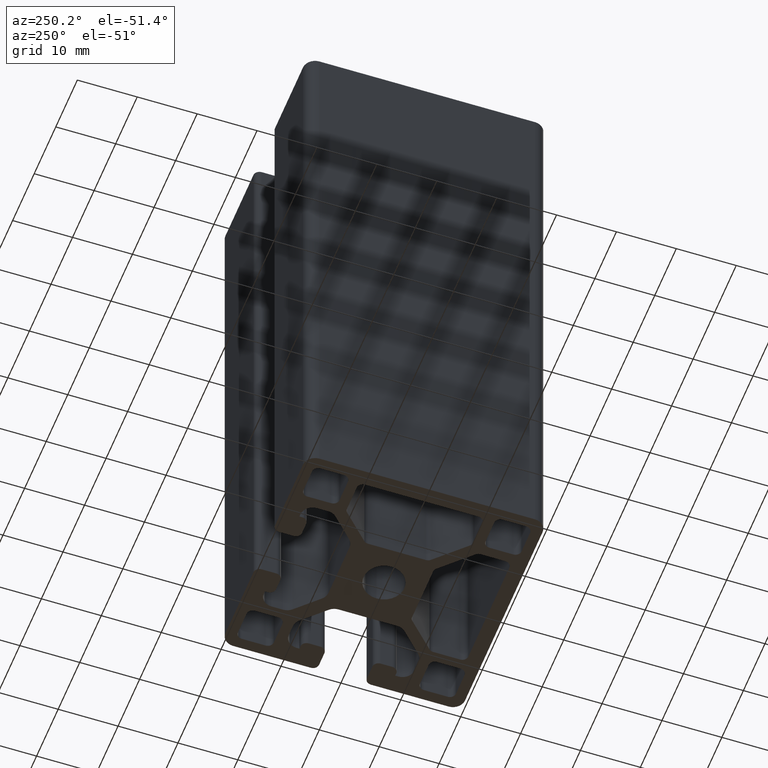
[diagram: clean part render]
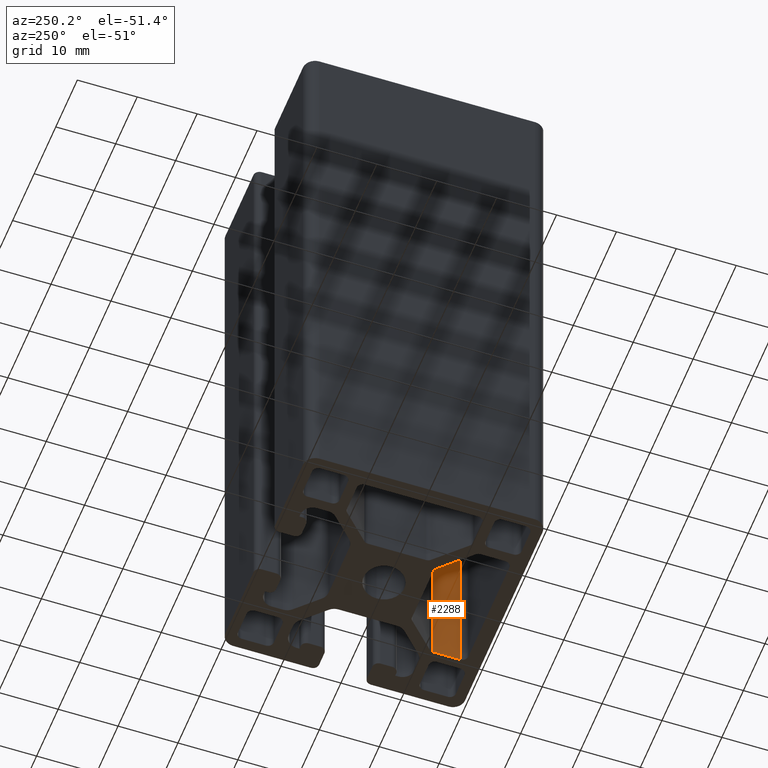
[diagram: same view with one face highlighted and labeled with its STEP entity id]
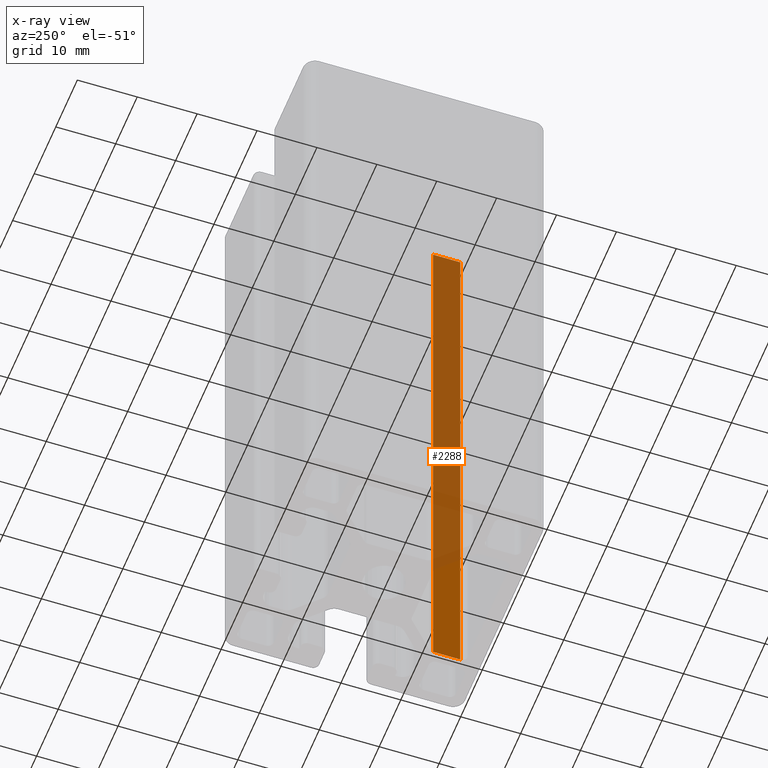
[diagram: x-ray of the same camera — body ghosted, the highlighted face saturated]
A machine part, auxiliary view. The second image highlights one B-rep face of the part: STEP entity #2288.
The next image is the same camera in x-ray: the body ghosted, the highlighted face saturated — about 77% of this face is hidden behind the body in this view.
In plain terms, the highlighted planar face has unit normal (1, -0, 0).
Its self-contained STEP definition (entity closure, byte-faithful):
#217=FACE_OUTER_BOUND('',#336,.T.);
#336=EDGE_LOOP('',(#1574,#1575,#1576,#1577));
#486=LINE('',#3429,#722);
#487=LINE('',#3432,#723);
#488=LINE('',#3434,#724);
#489=LINE('',#3435,#725);
#722=VECTOR('',#2724,100.);
#723=VECTOR('',#2727,4.52512908854503);
#724=VECTOR('',#2728,4.52512908854503);
#725=VECTOR('',#2729,100.);
#958=VERTEX_POINT('',#3425);
#959=VERTEX_POINT('',#3427);
#960=VERTEX_POINT('',#3431);
#961=VERTEX_POINT('',#3433);
#1208=EDGE_CURVE('',#959,#958,#486,.T.);
#1209=EDGE_CURVE('',#958,#960,#487,.T.);
#1210=EDGE_CURVE('',#961,#959,#488,.T.);
#1211=EDGE_CURVE('',#961,#960,#489,.T.);
#1574=ORIENTED_EDGE('',*,*,#1209,.F.);
#1575=ORIENTED_EDGE('',*,*,#1208,.F.);
#1576=ORIENTED_EDGE('',*,*,#1210,.F.);
#1577=ORIENTED_EDGE('',*,*,#1211,.T.);
#2218=PLANE('',#2425);
#2288=ADVANCED_FACE('',(#217),#2218,.F.);
#2425=AXIS2_PLACEMENT_3D('',#3430,#2725,#2726);
#2724=DIRECTION('',(0.,0.,1.));
#2725=DIRECTION('center_axis',(1.,-5.39761541910108E-15,0.));
#2726=DIRECTION('ref_axis',(5.32907051820075E-15,1.,0.));
#2727=DIRECTION('',(-5.39761541910108E-15,-1.,0.));
#2728=DIRECTION('',(5.39761541910108E-15,1.,0.));
#2729=DIRECTION('',(0.,0.,1.));
#3425=CARTESIAN_POINT('',(10.5000000000001,-11.974872907404,100.));
#3427=CARTESIAN_POINT('',(10.5000000000001,-11.974872907404,0.));
#3429=CARTESIAN_POINT('',(10.5000000000001,-11.974872907404,0.));
#3430=CARTESIAN_POINT('Origin',(10.5,-16.500001995949,0.));
#3431=CARTESIAN_POINT('',(10.5,-16.500001995949,100.));
#3432=CARTESIAN_POINT('',(10.5000000000001,-8.25000099797455,100.));
#3433=CARTESIAN_POINT('',(10.5,-16.500001995949,0.));
#3434=CARTESIAN_POINT('',(10.5000000000001,-8.25000099797455,0.));
#3435=CARTESIAN_POINT('',(10.5,-16.500001995949,0.));